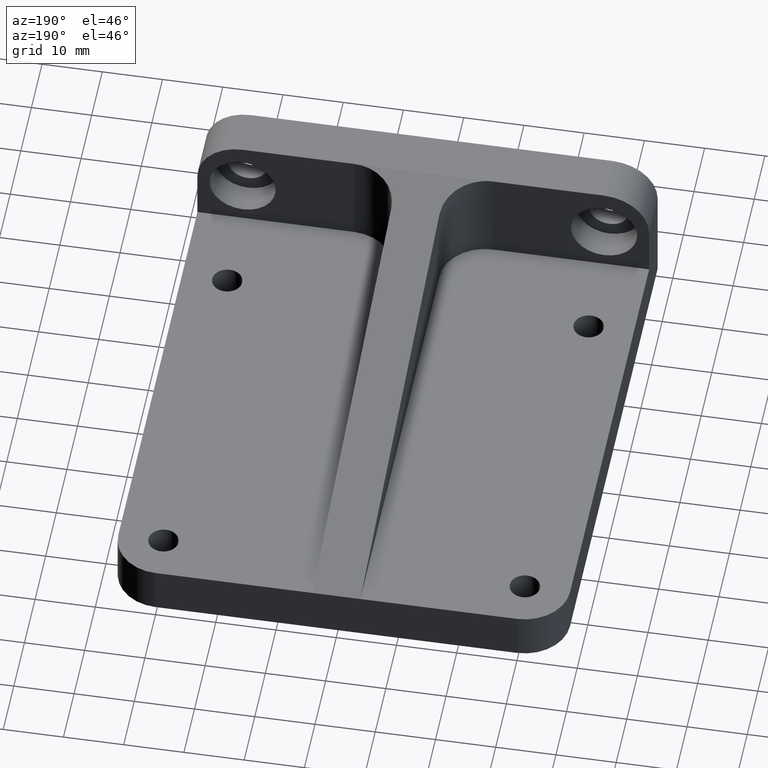
[diagram: clean part render]
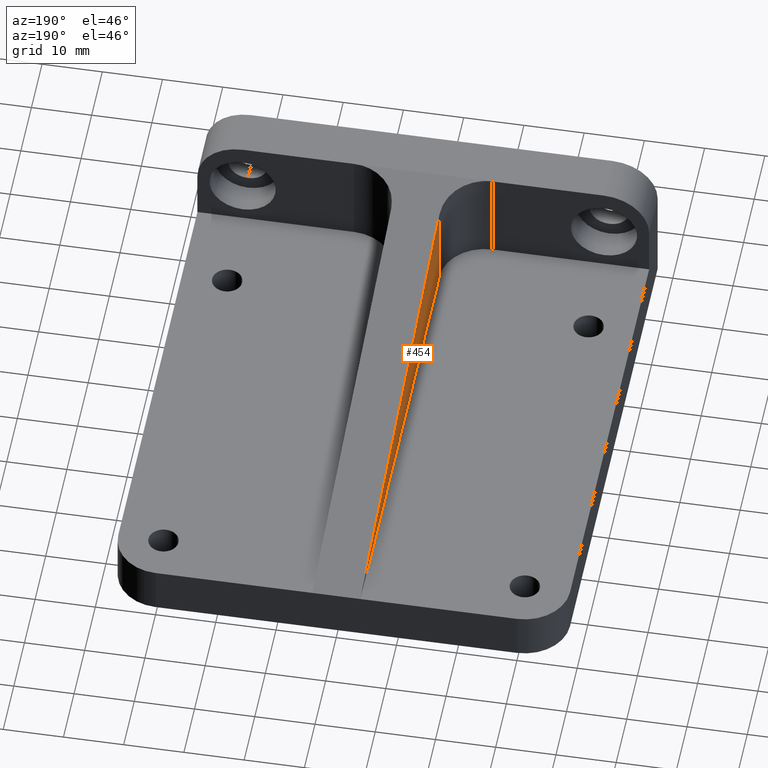
[diagram: same view with one face highlighted and labeled with its STEP entity id]
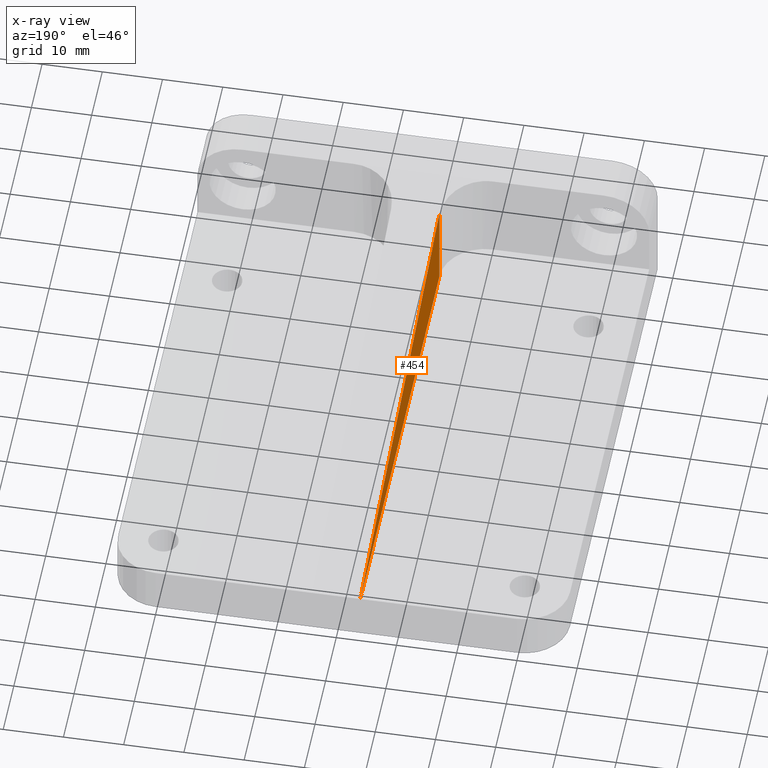
[diagram: x-ray of the same camera — body ghosted, the highlighted face saturated]
A machine part, auxiliary view. The second image highlights one B-rep face of the part: STEP entity #454.
The next image is the same camera in x-ray: the body ghosted, the highlighted face saturated — about 0% of this face is hidden behind the body in this view.
In plain terms, the highlighted planar face has unit normal (1, 0, 0).
Its self-contained STEP definition (entity closure, byte-faithful):
#93 = DIRECTION ( 'NONE',  ( 2.491631372835153837E-16, -0.9814905920256988825, 0.1915103594196485570 ) ) ;
#103 = VECTOR ( 'NONE', #93, 1000.000000000000227 ) ;
#104 = CARTESIAN_POINT ( 'NONE',  ( -3.999999999999991562, 15.49999999999999822, 8.000000000000007105 ) ) ;
#191 = CARTESIAN_POINT ( 'NONE',  ( -3.999999999999989786, 7.999999999999996447, -88.57906073107798761 ) ) ;
#203 = FACE_OUTER_BOUND ( 'NONE', #1051, .T. ) ;
#231 = VECTOR ( 'NONE', #383, 1000.000000000000000 ) ;
#276 = EDGE_CURVE ( 'NONE', #785, #675, #751, .T. ) ;
#285 = CARTESIAN_POINT ( 'NONE',  ( -4.000000000000010658, 89.99999999999998579, 8.000000000000001776 ) ) ;
#320 = CARTESIAN_POINT ( 'NONE',  ( -3.999999999999991562, 15.49999999999997158, 22.53658536585366079 ) ) ;
#383 = DIRECTION ( 'NONE',  ( -0.0000000000000000000, 0.0000000000000000000, 1.000000000000000000 ) ) ;
#454 = ADVANCED_FACE ( 'NONE', ( #203 ), #563, .F. ) ;
#473 = VECTOR ( 'NONE', #505, 1000.000000000000000 ) ;
#505 = DIRECTION ( 'NONE',  ( 2.538619720941669448E-16, -1.000000000000000000, 0.0000000000000000000 ) ) ;
#563 = PLANE ( 'NONE',  #762 ) ;
#608 = CARTESIAN_POINT ( 'NONE',  ( -3.999999999999991562, 15.49999999999999822, 23.99999999999999289 ) ) ;
#623 = ORIENTED_EDGE ( 'NONE', *, *, #860, .T. ) ;
#675 = VERTEX_POINT ( 'NONE', #320 ) ;
#701 = LINE ( 'NONE', #608, #231 ) ;
#708 = ORIENTED_EDGE ( 'NONE', *, *, #1221, .T. ) ;
#751 = LINE ( 'NONE', #285, #103 ) ;
#762 = AXIS2_PLACEMENT_3D ( 'NONE', #191, #1243, #1049 ) ;
#785 = VERTEX_POINT ( 'NONE', #1037 ) ;
#820 = VERTEX_POINT ( 'NONE', #104 ) ;
#860 = EDGE_CURVE ( 'NONE', #785, #820, #1085, .T. ) ;
#890 = CARTESIAN_POINT ( 'NONE',  ( -3.999999999999989786, 7.999999999999996447, 8.000000000000007105 ) ) ;
#1037 = CARTESIAN_POINT ( 'NONE',  ( -4.000000000000010658, 89.99999999999998579, 8.000000000000007105 ) ) ;
#1042 = ORIENTED_EDGE ( 'NONE', *, *, #276, .F. ) ;
#1049 = DIRECTION ( 'NONE',  ( -2.538619720941669448E-16, 1.000000000000000000, 0.0000000000000000000 ) ) ;
#1051 = EDGE_LOOP ( 'NONE', ( #623, #708, #1042 ) ) ;
#1085 = LINE ( 'NONE', #890, #473 ) ;
#1221 = EDGE_CURVE ( 'NONE', #820, #675, #701, .T. ) ;
#1243 = DIRECTION ( 'NONE',  ( 1.000000000000000000, 2.538619720941669448E-16, 0.0000000000000000000 ) ) ;